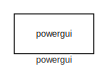
[diagram: root canvas - part 1/5, top left region]
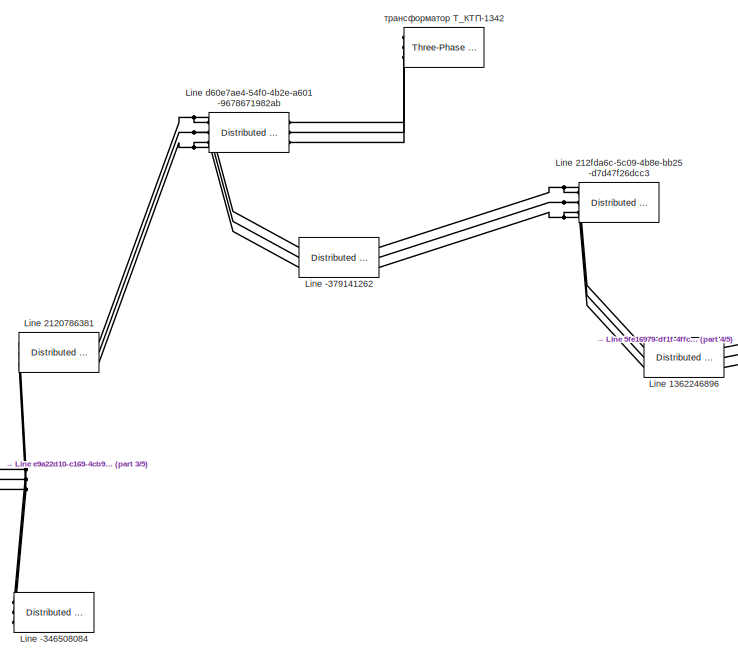
[diagram: root canvas - part 2/5, center side, full height]
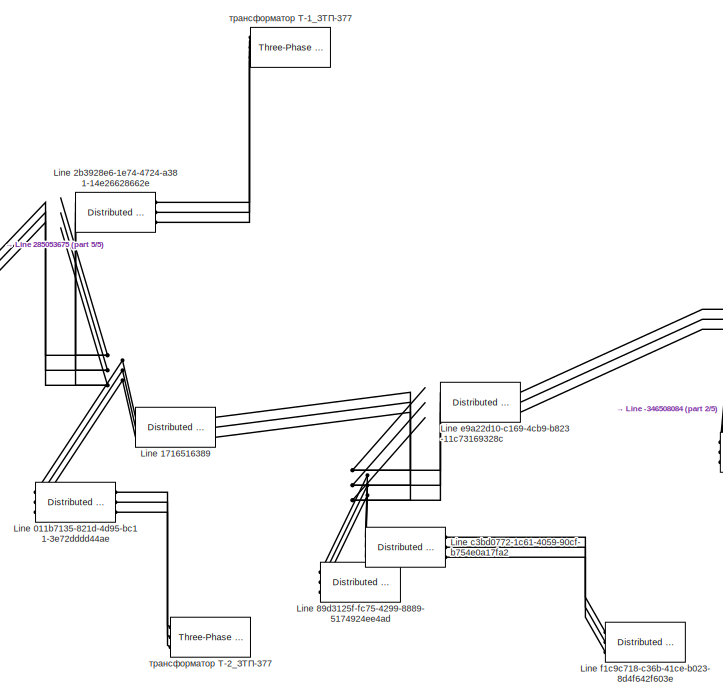
[diagram: root canvas - part 3/5, center side, full height]
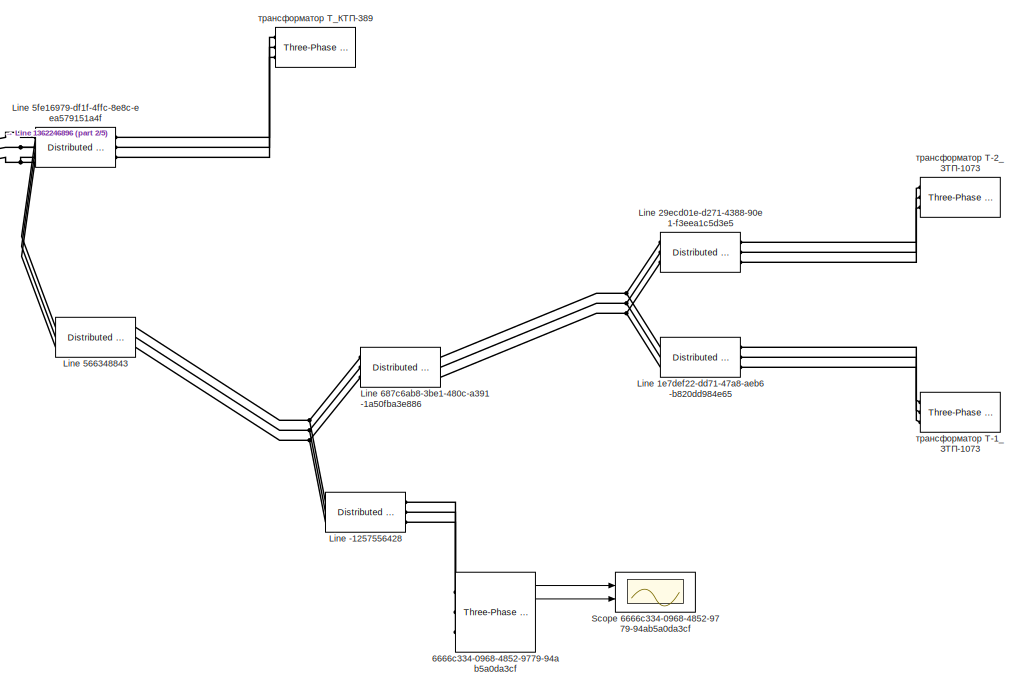
[diagram: root canvas - part 4/5, right side, full height]
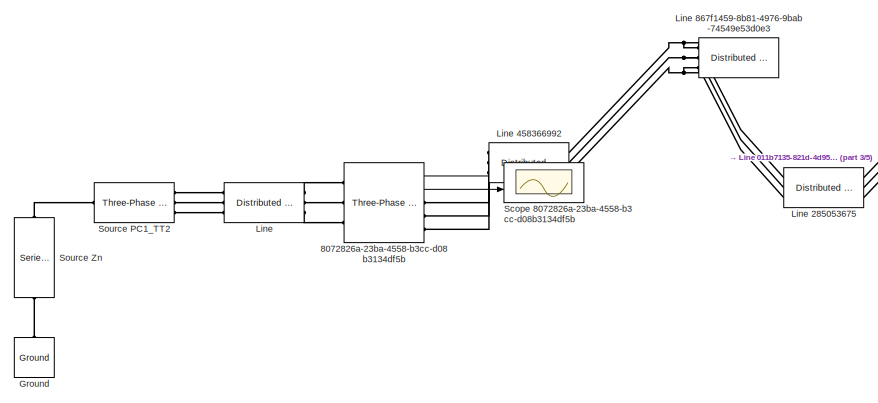
[diagram: root canvas - part 5/5, middle left region]
MODEL slx_5f06618e3be9
KIND model
CONFIG AbsTol = auto
CONFIG EnableMultiTasking = off
CONFIG FixedStep = 0.2
CONFIG MaxStep = auto
CONFIG MinStep = auto
CONFIG RelTol = 1e-3
CONFIG SampleTimeConstraint = Unconstrained
CONFIG SolverName = FixedStepAuto
CONFIG StartTime = 0
CONFIG StopTime = 0.2
BLOCK [Reference] 6666c334-0968-4852-9779-94ab5a0da3cf  REF=spsThreePhaseVIMeasurementLib/Three-Phase
V-I Measurement
  Ports = [0, 2, 0, 0, 0, 3, 3]
  SourceBlock = spsThreePhaseVIMeasurementLib/Three-Phase\nV-I Measurement
  SourceProductBaseCode = PS
  SourceType = Three-Phase VI Measurement
BLOCK [Reference] 8072826a-23ba-4558-b3cc-d08b3134df5b  REF=spsThreePhaseVIMeasurementLib/Three-Phase
V-I Measurement
  Ports = [0, 2, 0, 0, 0, 3, 3]
  SourceBlock = spsThreePhaseVIMeasurementLib/Three-Phase\nV-I Measurement
  SourceProductBaseCode = PS
  SourceType = Three-Phase VI Measurement
BLOCK [Reference] Ground  REF=spsGroundLib/Ground
  NameLocation = right
  Ports = [0, 0, 0, 0, 0, 1]
  SourceBlock = spsGroundLib/Ground
  SourceProductBaseCode = PS
  SourceType = Ground
BLOCK [Reference] Line  REF=spsDistributedParametersLineLib/Distributed Parameters Line
  Ports = [0, 0, 0, 0, 0, 3, 3]
  SourceBlock = spsDistributedParametersLineLib/Distributed Parameters Line
  SourceProductBaseCode = PS
  SourceType = Distributed Parameters Line
BLOCK [Reference] Line -1257556428  REF=spsDistributedParametersLineLib/Distributed Parameters Line
  Description = Line connected to devices: [Опора-7/3_РВА-18-10кВ, ВВ РВА-19-10кВ]
  Ports = [0, 0, 0, 0, 0, 3, 3]
  SourceBlock = spsDistributedParametersLineLib/Distributed Parameters Line
  SourceProductBaseCode = PS
  SourceType = Distributed Parameters Line
BLOCK [Reference] Line -346508084  REF=spsDistributedParametersLineLib/Distributed Parameters Line
  Description = Line connected to devices: [Опора-2/18_РВА-18-10кВ, трансформатор Т_ТП-1060]
  Ports = [0, 0, 0, 0, 0, 3, 3]
  SourceBlock = spsDistributedParametersLineLib/Distributed Parameters Line
  SourceProductBaseCode = PS
  SourceType = Distributed Parameters Line
BLOCK [Reference] Line -379141262  REF=spsDistributedParametersLineLib/Distributed Parameters Line
  Description = Line connected to devices: [Опора-2/22_РВА-18-10кВ, СШ ЗТП-921]
  Ports = [0, 0, 0, 0, 0, 3, 3]
  SourceBlock = spsDistributedParametersLineLib/Distributed Parameters Line
  SourceProductBaseCode = PS
  SourceType = Distributed Parameters Line
BLOCK [Reference] Line 011b7135-821d-4d95-bc11-3e72dddd44ae  REF=spsDistributedParametersLineLib/Distributed Parameters Line
  Description = Line connected to devices: [СШ ЗТП-377, трансформатор Т-2_ЗТП-377]
  Ports = [0, 0, 0, 0, 0, 3, 3]
  SourceBlock = spsDistributedParametersLineLib/Distributed Parameters Line
  SourceProductBaseCode = PS
  SourceType = Distributed Parameters Line
BLOCK [Reference] Line 1362246896  REF=spsDistributedParametersLineLib/Distributed Parameters Line
  Description = Line connected to devices: [СШ ЗТП-921, СШ КТП-389]
  Ports = [0, 0, 0, 0, 0, 3, 3]
  SourceBlock = spsDistributedParametersLineLib/Distributed Parameters Line
  SourceProductBaseCode = PS
  SourceType = Distributed Parameters Line
BLOCK [Reference] Line 1716516389  REF=spsDistributedParametersLineLib/Distributed Parameters Line
  Description = Line connected to devices: [СШ ЗТП-377, Опора-2/17_РВА-18-10кВ]
  Ports = [0, 0, 0, 0, 0, 3, 3]
  SourceBlock = spsDistributedParametersLineLib/Distributed Parameters Line
  SourceProductBaseCode = PS
  SourceType = Distributed Parameters Line
BLOCK [Reference] Line 1e7def22-dd71-47a8-aeb6-b820dd984e65  REF=spsDistributedParametersLineLib/Distributed Parameters Line
  Description = Line connected to devices: [СШ ЗТП-1073, трансформатор Т-1_ЗТП-1073]
  Ports = [0, 0, 0, 0, 0, 3, 3]
  SourceBlock = spsDistributedParametersLineLib/Distributed Parameters Line
  SourceProductBaseCode = PS
  SourceType = Distributed Parameters Line
BLOCK [Reference] Line 2120786381  REF=spsDistributedParametersLineLib/Distributed Parameters Line
  Description = Line connected to devices: [Опора-2/18_РВА-18-10кВ, Опора-2/22_РВА-18-10кВ]
  Ports = [0, 0, 0, 0, 0, 3, 3]
  SourceBlock = spsDistributedParametersLineLib/Distributed Parameters Line
  SourceProductBaseCode = PS
  SourceType = Distributed Parameters Line
BLOCK [Reference] Line 212fda6c-5c09-4b8e-bb25-d7d47f26dcc3  REF=spsDistributedParametersLineLib/Distributed Parameters Line
  Description = Line connected to devices: [СШ ЗТП-921, разъединитель ЗТП-921]
  Ports = [0, 0, 0, 0, 0, 3, 3]
  SourceBlock = spsDistributedParametersLineLib/Distributed Parameters Line
  SourceProductBaseCode = PS
  SourceType = Distributed Parameters Line
BLOCK [Reference] Line 285053675  REF=spsDistributedParametersLineLib/Distributed Parameters Line
  Description = Line connected to devices: [Опора-1/6_РВА-18-10кВ, СШ ЗТП-377]
  Ports = [0, 0, 0, 0, 0, 3, 3]
  SourceBlock = spsDistributedParametersLineLib/Distributed Parameters Line
  SourceProductBaseCode = PS
  SourceType = Distributed Parameters Line
BLOCK [Reference] Line 29ecd01e-d271-4388-90e1-f3eea1c5d3e5  REF=spsDistributedParametersLineLib/Distributed Parameters Line
  Description = Line connected to devices: [СШ ЗТП-1073, трансформатор Т-2_ЗТП-1073]
  Ports = [0, 0, 0, 0, 0, 3, 3]
  SourceBlock = spsDistributedParametersLineLib/Distributed Parameters Line
  SourceProductBaseCode = PS
  SourceType = Distributed Parameters Line
BLOCK [Reference] Line 2b3928e6-1e74-4724-a381-14e26628662e  REF=spsDistributedParametersLineLib/Distributed Parameters Line
  Description = Line connected to devices: [СШ ЗТП-377, трансформатор Т-1_ЗТП-377]
  Ports = [0, 0, 0, 0, 0, 3, 3]
  SourceBlock = spsDistributedParametersLineLib/Distributed Parameters Line
  SourceProductBaseCode = PS
  SourceType = Distributed Parameters Line
BLOCK [Reference] Line 458366992  REF=spsDistributedParametersLineLib/Distributed Parameters Line
  Description = Line connected to devices: [ВВ РВА-18-10кВ, Опора-1/6_РВА-18-10кВ]
  Ports = [0, 0, 0, 0, 0, 3, 3]
  SourceBlock = spsDistributedParametersLineLib/Distributed Parameters Line
  SourceProductBaseCode = PS
  SourceType = Distributed Parameters Line
BLOCK [Reference] Line 566348843  REF=spsDistributedParametersLineLib/Distributed Parameters Line
  Description = Line connected to devices: [СШ КТП-389, Опора-7/3_РВА-18-10кВ]
  Ports = [0, 0, 0, 0, 0, 3, 3]
  SourceBlock = spsDistributedParametersLineLib/Distributed Parameters Line
  SourceProductBaseCode = PS
  SourceType = Distributed Parameters Line
BLOCK [Reference] Line 5fe16979-df1f-4ffc-8e8c-eea579151a4f  REF=spsDistributedParametersLineLib/Distributed Parameters Line
  Description = Line connected to devices: [СШ КТП-389, трансформатор Т_КТП-389]
  Ports = [0, 0, 0, 0, 0, 3, 3]
  SourceBlock = spsDistributedParametersLineLib/Distributed Parameters Line
  SourceProductBaseCode = PS
  SourceType = Distributed Parameters Line
BLOCK [Reference] Line 687c6ab8-3be1-480c-a391-1a50fba3e886  REF=spsDistributedParametersLineLib/Distributed Parameters Line
  Description = Line connected to devices: [Опора-7/3_РВА-18-10кВ, СШ ЗТП-1073]
  Ports = [0, 0, 0, 0, 0, 3, 3]
  SourceBlock = spsDistributedParametersLineLib/Distributed Parameters Line
  SourceProductBaseCode = PS
  SourceType = Distributed Parameters Line
BLOCK [Reference] Line 867f1459-8b81-4976-9bab-74549e53d0e3  REF=spsDistributedParametersLineLib/Distributed Parameters Line
  Description = Line connected to devices: [Опора-1/6_РВА-18-10кВ, трансформатор КТП-881]
  Ports = [0, 0, 0, 0, 0, 3, 3]
  SourceBlock = spsDistributedParametersLineLib/Distributed Parameters Line
  SourceProductBaseCode = PS
  SourceType = Distributed Parameters Line
BLOCK [Reference] Line 89d3125f-fc75-4299-8889-5174924ee4ad  REF=spsDistributedParametersLineLib/Distributed Parameters Line
  Description = Line connected to devices: [Опора-2/17_РВА-18-10кВ, трансформатор Т_КТП-1374]
  Ports = [0, 0, 0, 0, 0, 3, 3]
  SourceBlock = spsDistributedParametersLineLib/Distributed Parameters Line
  SourceProductBaseCode = PS
  SourceType = Distributed Parameters Line
BLOCK [Reference] Line c3bd0772-1c61-4059-90cf-b754e0a17fa2  REF=spsDistributedParametersLineLib/Distributed Parameters Line
  Description = Line connected to devices: [Опора-2/17_РВА-18-10кВ, разъединитель ЛР-235-10кВ]
  Ports = [0, 0, 0, 0, 0, 3, 3]
  SourceBlock = spsDistributedParametersLineLib/Distributed Parameters Line
  SourceProductBaseCode = PS
  SourceType = Distributed Parameters Line
BLOCK [Reference] Line d60e7ae4-54f0-4b2e-a601-9678671982ab  REF=spsDistributedParametersLineLib/Distributed Parameters Line
  Description = Line connected to devices: [Опора-2/22_РВА-18-10кВ, трансформатор Т_КТП-1342]
  Ports = [0, 0, 0, 0, 0, 3, 3]
  SourceBlock = spsDistributedParametersLineLib/Distributed Parameters Line
  SourceProductBaseCode = PS
  SourceType = Distributed Parameters Line
BLOCK [Reference] Line e9a22d10-c169-4cb9-b823-11c73169328c  REF=spsDistributedParametersLineLib/Distributed Parameters Line
  Description = Line connected to devices: [Опора-2/17_РВА-18-10кВ, Опора-2/18_РВА-18-10кВ]
  Ports = [0, 0, 0, 0, 0, 3, 3]
  SourceBlock = spsDistributedParametersLineLib/Distributed Parameters Line
  SourceProductBaseCode = PS
  SourceType = Distributed Parameters Line
BLOCK [Reference] Line f1c9c718-c36b-41ce-b023-8d4f642f603e  REF=spsDistributedParametersLineLib/Distributed Parameters Line
  Description = Line connected to devices: [разъединитель ЛР-235-10кВ, трансформатор Т_КТП-1303]
  Ports = [0, 0, 0, 0, 0, 3, 3]
  SourceBlock = spsDistributedParametersLineLib/Distributed Parameters Line
  SourceProductBaseCode = PS
  SourceType = Distributed Parameters Line
BLOCK [Scope] Scope 6666c334-0968-4852-9779-94ab5a0da3cf
  Floating = off
  NumInputPorts = 2
  Ports = [2]
  ScopeSpecificationString = Simulink.scopes.TimeScopeBlockCfg('CurrentConfiguration', extmgr.ConfigurationSet(extmgr.Configuration('Core','General UI',true),extmgr.Configuration('Core','Source UI',true),extmgr.Configuration('Sources','WiredSimulink',true,'DataLogging',true,'DataLoggingSaveFormat','StructureWithTime','DataLoggingVariableName','ScopeData20'),extmgr.Configuration('Visuals','Time Domain',true,'SerializedDisplays...<+1381ch>
BLOCK [Scope] Scope 8072826a-23ba-4558-b3cc-d08b3134df5b
  Floating = off
  NumInputPorts = 2
  Ports = [2]
  ScopeSpecificationString = Simulink.scopes.TimeScopeBlockCfg('CurrentConfiguration', extmgr.ConfigurationSet(extmgr.Configuration('Core','General UI',true),extmgr.Configuration('Core','Source UI',true),extmgr.Configuration('Sources','WiredSimulink',true,'DataLogging',true,'DataLoggingSaveFormat','StructureWithTime','DataLoggingVariableName','ScopeData3'),extmgr.Configuration('Visuals','Time Domain',true,'SerializedDisplays'...<+1380ch>
BLOCK [Reference] Source PC1_TT2  REF=spsThreePhaseSourceLib/Three-Phase Source
  Ports = [0, 0, 0, 0, 0, 1, 3]
  SourceBlock = spsThreePhaseSourceLib/Three-Phase Source
  SourceProductBaseCode = PS
  SourceType = Three-Phase Source
BLOCK [Reference] Source Zn  REF=spsSeriesRLCBranchLib/Series RLC Branch
  NameLocation = right
  Ports = [0, 0, 0, 0, 0, 1, 1]
  SourceBlock = spsSeriesRLCBranchLib/Series RLC Branch
  SourceProductBaseCode = PS
  SourceType = Series RLC Branch
BLOCK [Reference] powergui  REF=spspowerguiLib/powergui
  Ports = []
  Priority = 1
  SourceBlock = spspowerguiLib/powergui
  SourceProductBaseCode = PS
  SourceType = PSB option menu block
BLOCK [Reference] трансформатор Т-1_ЗТП-1073  REF=spsThreePhaseSeriesRLCLoadLib/Three-Phase
Series RLC Load
  AttributesFormatString = \n
  Description = Device type: [LOAD], in DispatcherName: [трансформатор Т-1_ЗТП-1073]
  NameLocation = top
  Ports = [0, 0, 0, 0, 0, 3]
  SourceBlock = spsThreePhaseSeriesRLCLoadLib/Three-Phase\nSeries RLC Load
  SourceProductBaseCode = PS
  SourceType = Three-Phase Series RLC Load
BLOCK [Reference] трансформатор Т-1_ЗТП-377  REF=spsThreePhaseSeriesRLCLoadLib/Three-Phase
Series RLC Load
  AttributesFormatString = \n
  Description = Device type: [LOAD], in DispatcherName: [трансформатор Т-1_ЗТП-377]
  NameLocation = top
  Ports = [0, 0, 0, 0, 0, 3]
  SourceBlock = spsThreePhaseSeriesRLCLoadLib/Three-Phase\nSeries RLC Load
  SourceProductBaseCode = PS
  SourceType = Three-Phase Series RLC Load
BLOCK [Reference] трансформатор Т-2_ЗТП-1073  REF=spsThreePhaseSeriesRLCLoadLib/Three-Phase
Series RLC Load
  AttributesFormatString = \n
  Description = Device type: [LOAD], in DispatcherName: [трансформатор Т-2_ЗТП-1073]
  NameLocation = top
  Ports = [0, 0, 0, 0, 0, 3]
  SourceBlock = spsThreePhaseSeriesRLCLoadLib/Three-Phase\nSeries RLC Load
  SourceProductBaseCode = PS
  SourceType = Three-Phase Series RLC Load
BLOCK [Reference] трансформатор Т-2_ЗТП-377  REF=spsThreePhaseSeriesRLCLoadLib/Three-Phase
Series RLC Load
  AttributesFormatString = \n
  Description = Device type: [LOAD], in DispatcherName: [трансформатор Т-2_ЗТП-377]
  NameLocation = top
  Ports = [0, 0, 0, 0, 0, 3]
  SourceBlock = spsThreePhaseSeriesRLCLoadLib/Three-Phase\nSeries RLC Load
  SourceProductBaseCode = PS
  SourceType = Three-Phase Series RLC Load
BLOCK [Reference] трансформатор Т_КТП-1342  REF=spsThreePhaseSeriesRLCLoadLib/Three-Phase
Series RLC Load
  AttributesFormatString = \n
  Description = Device type: [LOAD], in DispatcherName: [трансформатор Т_КТП-1342]
  NameLocation = top
  Ports = [0, 0, 0, 0, 0, 3]
  SourceBlock = spsThreePhaseSeriesRLCLoadLib/Three-Phase\nSeries RLC Load
  SourceProductBaseCode = PS
  SourceType = Three-Phase Series RLC Load
BLOCK [Reference] трансформатор Т_КТП-389  REF=spsThreePhaseSeriesRLCLoadLib/Three-Phase
Series RLC Load
  AttributesFormatString = \n
  Description = Device type: [LOAD], in DispatcherName: [трансформатор Т_КТП-389]
  NameLocation = top
  Ports = [0, 0, 0, 0, 0, 3]
  SourceBlock = spsThreePhaseSeriesRLCLoadLib/Three-Phase\nSeries RLC Load
  SourceProductBaseCode = PS
  SourceType = Three-Phase Series RLC Load
LINE 6666c334-0968-4852-9779-94ab5a0da3cf:1 -> Scope 6666c334-0968-4852-9779-94ab5a0da3cf:1
LINE 6666c334-0968-4852-9779-94ab5a0da3cf:2 -> Scope 6666c334-0968-4852-9779-94ab5a0da3cf:2
LINE 8072826a-23ba-4558-b3cc-d08b3134df5b:1 -> Scope 8072826a-23ba-4558-b3cc-d08b3134df5b:1
LINE 8072826a-23ba-4558-b3cc-d08b3134df5b:2 -> Scope 8072826a-23ba-4558-b3cc-d08b3134df5b:2
PLINE 6666c334-0968-4852-9779-94ab5a0da3cf:LConn1 -- Line -1257556428:RConn1
PLINE 6666c334-0968-4852-9779-94ab5a0da3cf:LConn2 -- Line -1257556428:RConn2
PLINE 6666c334-0968-4852-9779-94ab5a0da3cf:LConn3 -- Line -1257556428:RConn3
PLINE 8072826a-23ba-4558-b3cc-d08b3134df5b:LConn1 -- Line:RConn1
PLINE 8072826a-23ba-4558-b3cc-d08b3134df5b:LConn2 -- Line:RConn2
PLINE 8072826a-23ba-4558-b3cc-d08b3134df5b:LConn3 -- Line:RConn3
PLINE 8072826a-23ba-4558-b3cc-d08b3134df5b:RConn1 -- Line 458366992:LConn1
PLINE 8072826a-23ba-4558-b3cc-d08b3134df5b:RConn2 -- Line 458366992:LConn2
PLINE 8072826a-23ba-4558-b3cc-d08b3134df5b:RConn3 -- Line 458366992:LConn3
PLINE Ground:LConn1 -- Source Zn:LConn1
PNET net1: Line -1257556428:LConn1 -- Line 566348843:RConn1 -- Line 687c6ab8-3be1-480c-a391-1a50fba3e886:LConn1
PNET net2: Line -1257556428:LConn2 -- Line 566348843:RConn2 -- Line 687c6ab8-3be1-480c-a391-1a50fba3e886:LConn2
PNET net3: Line -1257556428:LConn3 -- Line 566348843:RConn3 -- Line 687c6ab8-3be1-480c-a391-1a50fba3e886:LConn3
PNET net4: Line -346508084:LConn1 -- Line 2120786381:LConn1 -- Line e9a22d10-c169-4cb9-b823-11c73169328c:RConn1
PNET net5: Line -346508084:LConn2 -- Line 2120786381:LConn2 -- Line e9a22d10-c169-4cb9-b823-11c73169328c:RConn2
PNET net6: Line -346508084:LConn3 -- Line 2120786381:LConn3 -- Line e9a22d10-c169-4cb9-b823-11c73169328c:RConn3
PNET net7: Line -379141262:LConn1 -- Line 2120786381:RConn1 -- Line d60e7ae4-54f0-4b2e-a601-9678671982ab:LConn1
PNET net8: Line -379141262:LConn2 -- Line 2120786381:RConn2 -- Line d60e7ae4-54f0-4b2e-a601-9678671982ab:LConn2
PNET net9: Line -379141262:LConn3 -- Line 2120786381:RConn3 -- Line d60e7ae4-54f0-4b2e-a601-9678671982ab:LConn3
PNET net10: Line -379141262:RConn1 -- Line 1362246896:LConn1 -- Line 212fda6c-5c09-4b8e-bb25-d7d47f26dcc3:LConn1
PNET net11: Line -379141262:RConn2 -- Line 1362246896:LConn2 -- Line 212fda6c-5c09-4b8e-bb25-d7d47f26dcc3:LConn2
PNET net12: Line -379141262:RConn3 -- Line 1362246896:LConn3 -- Line 212fda6c-5c09-4b8e-bb25-d7d47f26dcc3:LConn3
PNET net13: Line 011b7135-821d-4d95-bc11-3e72dddd44ae:LConn1 -- Line 1716516389:LConn1 -- Line 285053675:RConn1 -- Line 2b3928e6-1e74-4724-a381-14e26628662e:LConn1
PNET net14: Line 011b7135-821d-4d95-bc11-3e72dddd44ae:LConn2 -- Line 1716516389:LConn2 -- Line 285053675:RConn2 -- Line 2b3928e6-1e74-4724-a381-14e26628662e:LConn2
PNET net15: Line 011b7135-821d-4d95-bc11-3e72dddd44ae:LConn3 -- Line 1716516389:LConn3 -- Line 285053675:RConn3 -- Line 2b3928e6-1e74-4724-a381-14e26628662e:LConn3
PLINE Line 011b7135-821d-4d95-bc11-3e72dddd44ae:RConn1 -- трансформатор Т-2_ЗТП-377:LConn1
PLINE Line 011b7135-821d-4d95-bc11-3e72dddd44ae:RConn2 -- трансформатор Т-2_ЗТП-377:LConn2
PLINE Line 011b7135-821d-4d95-bc11-3e72dddd44ae:RConn3 -- трансформатор Т-2_ЗТП-377:LConn3
PNET net16: Line 1362246896:RConn1 -- Line 566348843:LConn1 -- Line 5fe16979-df1f-4ffc-8e8c-eea579151a4f:LConn1
PNET net17: Line 1362246896:RConn2 -- Line 566348843:LConn2 -- Line 5fe16979-df1f-4ffc-8e8c-eea579151a4f:LConn2
PNET net18: Line 1362246896:RConn3 -- Line 566348843:LConn3 -- Line 5fe16979-df1f-4ffc-8e8c-eea579151a4f:LConn3
PNET net19: Line 1716516389:RConn1 -- Line 89d3125f-fc75-4299-8889-5174924ee4ad:LConn1 -- Line c3bd0772-1c61-4059-90cf-b754e0a17fa2:LConn1 -- Line e9a22d10-c169-4cb9-b823-11c73169328c:LConn1
PNET net20: Line 1716516389:RConn2 -- Line 89d3125f-fc75-4299-8889-5174924ee4ad:LConn2 -- Line c3bd0772-1c61-4059-90cf-b754e0a17fa2:LConn2 -- Line e9a22d10-c169-4cb9-b823-11c73169328c:LConn2
PNET net21: Line 1716516389:RConn3 -- Line 89d3125f-fc75-4299-8889-5174924ee4ad:LConn3 -- Line c3bd0772-1c61-4059-90cf-b754e0a17fa2:LConn3 -- Line e9a22d10-c169-4cb9-b823-11c73169328c:LConn3
PNET net22: Line 1e7def22-dd71-47a8-aeb6-b820dd984e65:LConn1 -- Line 29ecd01e-d271-4388-90e1-f3eea1c5d3e5:LConn1 -- Line 687c6ab8-3be1-480c-a391-1a50fba3e886:RConn1
PNET net23: Line 1e7def22-dd71-47a8-aeb6-b820dd984e65:LConn2 -- Line 29ecd01e-d271-4388-90e1-f3eea1c5d3e5:LConn2 -- Line 687c6ab8-3be1-480c-a391-1a50fba3e886:RConn2
PNET net24: Line 1e7def22-dd71-47a8-aeb6-b820dd984e65:LConn3 -- Line 29ecd01e-d271-4388-90e1-f3eea1c5d3e5:LConn3 -- Line 687c6ab8-3be1-480c-a391-1a50fba3e886:RConn3
PLINE Line 1e7def22-dd71-47a8-aeb6-b820dd984e65:RConn1 -- трансформатор Т-1_ЗТП-1073:LConn1
PLINE Line 1e7def22-dd71-47a8-aeb6-b820dd984e65:RConn2 -- трансформатор Т-1_ЗТП-1073:LConn2
PLINE Line 1e7def22-dd71-47a8-aeb6-b820dd984e65:RConn3 -- трансформатор Т-1_ЗТП-1073:LConn3
PNET net25: Line 285053675:LConn1 -- Line 458366992:RConn1 -- Line 867f1459-8b81-4976-9bab-74549e53d0e3:LConn1
PNET net26: Line 285053675:LConn2 -- Line 458366992:RConn2 -- Line 867f1459-8b81-4976-9bab-74549e53d0e3:LConn2
PNET net27: Line 285053675:LConn3 -- Line 458366992:RConn3 -- Line 867f1459-8b81-4976-9bab-74549e53d0e3:LConn3
PLINE Line 29ecd01e-d271-4388-90e1-f3eea1c5d3e5:RConn1 -- трансформатор Т-2_ЗТП-1073:LConn1
PLINE Line 29ecd01e-d271-4388-90e1-f3eea1c5d3e5:RConn2 -- трансформатор Т-2_ЗТП-1073:LConn2
PLINE Line 29ecd01e-d271-4388-90e1-f3eea1c5d3e5:RConn3 -- трансформатор Т-2_ЗТП-1073:LConn3
PLINE Line 2b3928e6-1e74-4724-a381-14e26628662e:RConn1 -- трансформатор Т-1_ЗТП-377:LConn1
PLINE Line 2b3928e6-1e74-4724-a381-14e26628662e:RConn2 -- трансформатор Т-1_ЗТП-377:LConn2
PLINE Line 2b3928e6-1e74-4724-a381-14e26628662e:RConn3 -- трансформатор Т-1_ЗТП-377:LConn3
PLINE Line 5fe16979-df1f-4ffc-8e8c-eea579151a4f:RConn1 -- трансформатор Т_КТП-389:LConn1
PLINE Line 5fe16979-df1f-4ffc-8e8c-eea579151a4f:RConn2 -- трансформатор Т_КТП-389:LConn2
PLINE Line 5fe16979-df1f-4ffc-8e8c-eea579151a4f:RConn3 -- трансформатор Т_КТП-389:LConn3
PLINE Line c3bd0772-1c61-4059-90cf-b754e0a17fa2:RConn1 -- Line f1c9c718-c36b-41ce-b023-8d4f642f603e:LConn1
PLINE Line c3bd0772-1c61-4059-90cf-b754e0a17fa2:RConn2 -- Line f1c9c718-c36b-41ce-b023-8d4f642f603e:LConn2
PLINE Line c3bd0772-1c61-4059-90cf-b754e0a17fa2:RConn3 -- Line f1c9c718-c36b-41ce-b023-8d4f642f603e:LConn3
PLINE Line d60e7ae4-54f0-4b2e-a601-9678671982ab:RConn1 -- трансформатор Т_КТП-1342:LConn1
PLINE Line d60e7ae4-54f0-4b2e-a601-9678671982ab:RConn2 -- трансформатор Т_КТП-1342:LConn2
PLINE Line d60e7ae4-54f0-4b2e-a601-9678671982ab:RConn3 -- трансформатор Т_КТП-1342:LConn3
PLINE Line:LConn1 -- Source PC1_TT2:RConn1
PLINE Line:LConn2 -- Source PC1_TT2:RConn2
PLINE Line:LConn3 -- Source PC1_TT2:RConn3
PLINE Source PC1_TT2:LConn1 -- Source Zn:RConn1
note: PNET lines group multi-terminal physical nets as a canonical sorted terminal list (undirected conserving connections); 2-terminal nets keep the pairwise PLINE form
